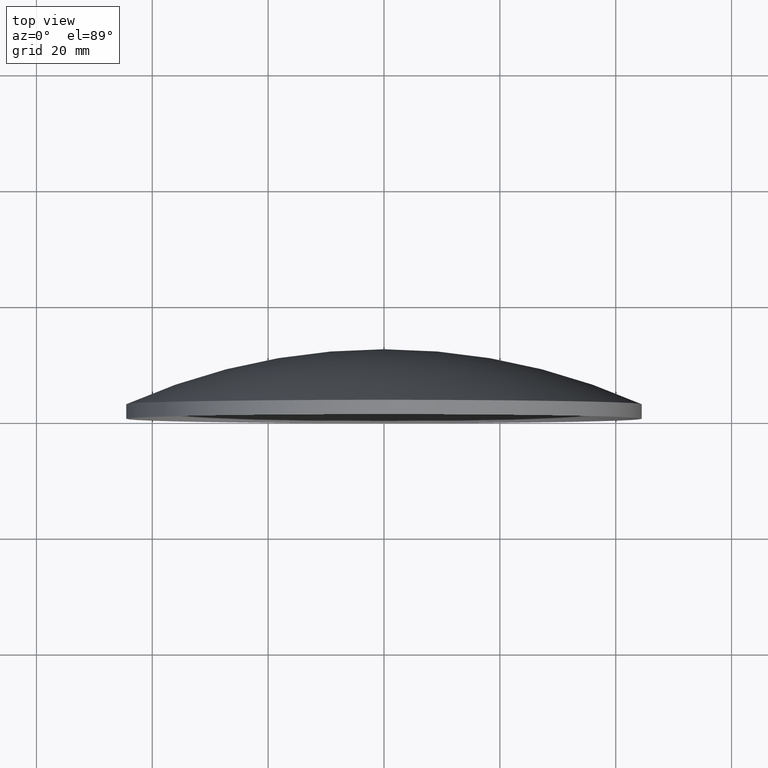
[diagram: clean part render]
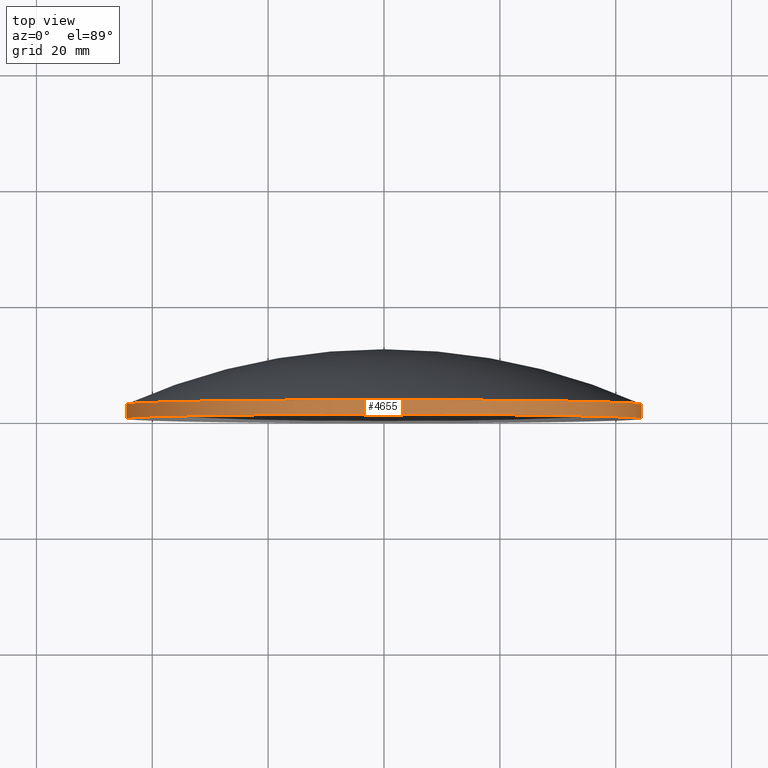
[diagram: same view with one face highlighted and labeled with its STEP entity id]
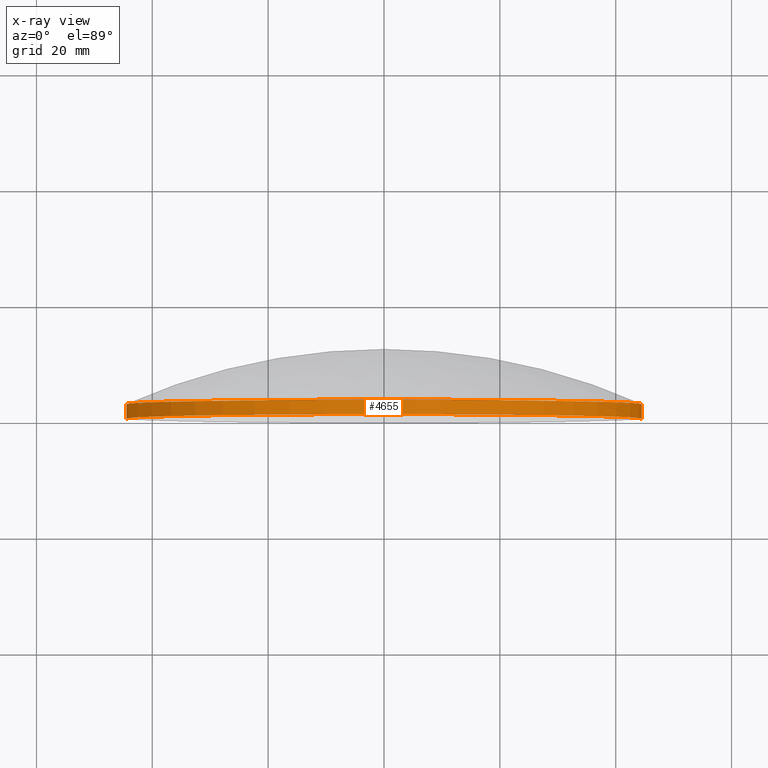
[diagram: x-ray of the same camera — body ghosted, the highlighted face saturated]
A machine part, top view. The second image highlights one B-rep face of the part: STEP entity #4655.
The next image is the same camera in x-ray: the body ghosted, the highlighted face saturated — about 0% of this face is hidden behind the body in this view.
In plain terms, the highlighted cylindrical surface (partial cylindrical patch) has radius 44.5 mm, axis along (-0, -1, -0).
Its self-contained STEP definition (entity closure, byte-faithful):
#207 = DIRECTION ( 'NONE',  ( -9.745610317425236300E-015, -1.000000000000000000, -0.0000000000000000000 ) ) ;
#973 = VERTEX_POINT ( 'NONE', #11027 ) ;
#2111 = EDGE_CURVE ( 'NONE', #2183, #9338, #7220, .T. ) ;
#2183 = VERTEX_POINT ( 'NONE', #6033 ) ;
#2250 = ORIENTED_EDGE ( 'NONE', *, *, #2111, .F. ) ;
#2531 = VECTOR ( 'NONE', #12362, 1000.000000000000000 ) ;
#2902 = DIRECTION ( 'NONE',  ( -9.745610317425236300E-015, -1.000000000000000000, -0.0000000000000000000 ) ) ;
#3147 = ORIENTED_EDGE ( 'NONE', *, *, #12634, .T. ) ;
#3459 = CIRCLE ( 'NONE', #10609, 44.50000000000008500 ) ;
#3638 = VERTEX_POINT ( 'NONE', #8086 ) ;
#3819 = CARTESIAN_POINT ( 'NONE',  ( 44.50000000000000000, 1.209868777898162500E-018, 0.0000000000000000000 ) ) ;
#4387 = AXIS2_PLACEMENT_3D ( 'NONE', #13176, #4811, #12200 ) ;
#4603 = CYLINDRICAL_SURFACE ( 'NONE', #8331, 44.50000000000007800 ) ;
#4655 = ADVANCED_FACE ( 'NONE', ( #13248 ), #4603, .T. ) ;
#4811 = DIRECTION ( 'NONE',  ( -9.745610317425236300E-015, -1.000000000000000000, -0.0000000000000000000 ) ) ;
#5484 = EDGE_CURVE ( 'NONE', #973, #3638, #11107, .T. ) ;
#6033 = CARTESIAN_POINT ( 'NONE',  ( 44.50000000000000000, 2.499999999999988500, 0.0000000000000000000 ) ) ;
#6187 = CARTESIAN_POINT ( 'NONE',  ( 44.50000000000007800, 9.499999999999561200, 0.0000000000000000000 ) ) ;
#6573 = EDGE_CURVE ( 'NONE', #9338, #3638, #3459, .T. ) ;
#6724 = CIRCLE ( 'NONE', #4387, 44.50000000000006400 ) ;
#6968 = CARTESIAN_POINT ( 'NONE',  ( 0.0000000000000000000, 9.499999999999994700, 0.0000000000000000000 ) ) ;
#7220 = LINE ( 'NONE', #6187, #2531 ) ;
#7266 = DIRECTION ( 'NONE',  ( 1.000000000000000000, -9.745610317425236300E-015, 0.0000000000000000000 ) ) ;
#7406 = CARTESIAN_POINT ( 'NONE',  ( -44.50000000000007800, 9.500000000000428100, 5.449678256205732200E-015 ) ) ;
#7528 = VECTOR ( 'NONE', #207, 1000.000000000000000 ) ;
#8086 = CARTESIAN_POINT ( 'NONE',  ( -44.50000000000017100, 8.673605281196255000E-013, 5.449678256205733800E-015 ) ) ;
#8163 = DIRECTION ( 'NONE',  ( -9.745610317425236300E-015, -1.000000000000000000, -0.0000000000000000000 ) ) ;
#8331 = AXIS2_PLACEMENT_3D ( 'NONE', #6968, #2902, #11061 ) ;
#9012 = ORIENTED_EDGE ( 'NONE', *, *, #5484, .T. ) ;
#9338 = VERTEX_POINT ( 'NONE', #3819 ) ;
#10609 = AXIS2_PLACEMENT_3D ( 'NONE', #13404, #8163, #7266 ) ;
#10837 = ORIENTED_EDGE ( 'NONE', *, *, #6573, .F. ) ;
#11027 = CARTESIAN_POINT ( 'NONE',  ( -44.50000000000013500, 2.500000000000855800, 5.449678256205731400E-015 ) ) ;
#11061 = DIRECTION ( 'NONE',  ( 1.000000000000000000, -9.745637505487662800E-015, 0.0000000000000000000 ) ) ;
#11107 = LINE ( 'NONE', #7406, #7528 ) ;
#11889 = EDGE_LOOP ( 'NONE', ( #3147, #9012, #10837, #2250 ) ) ;
#12200 = DIRECTION ( 'NONE',  ( 1.000000000000000000, -9.745637505487665900E-015, 0.0000000000000000000 ) ) ;
#12362 = DIRECTION ( 'NONE',  ( -9.745610317425236300E-015, -1.000000000000000000, -0.0000000000000000000 ) ) ;
#12634 = EDGE_CURVE ( 'NONE', #2183, #973, #6724, .T. ) ;
#13176 = CARTESIAN_POINT ( 'NONE',  ( -6.821927222197248700E-014, 2.500000000000421900, 0.0000000000000000000 ) ) ;
#13248 = FACE_OUTER_BOUND ( 'NONE', #11889, .T. ) ;
#13404 = CARTESIAN_POINT ( 'NONE',  ( -9.258329801553546800E-014, 4.336808689942017700E-013, 0.0000000000000000000 ) ) ;